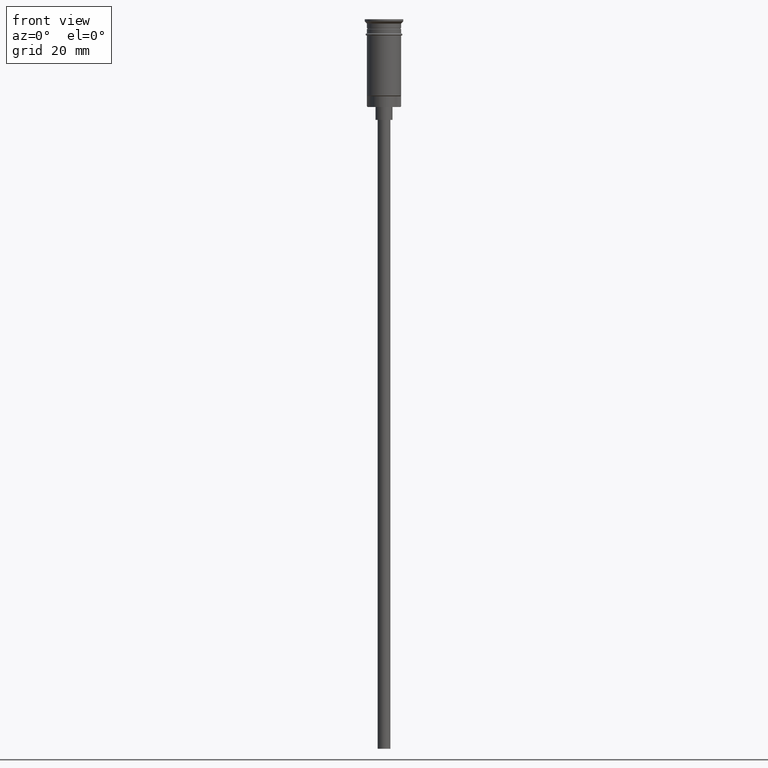
[diagram: clean part render]
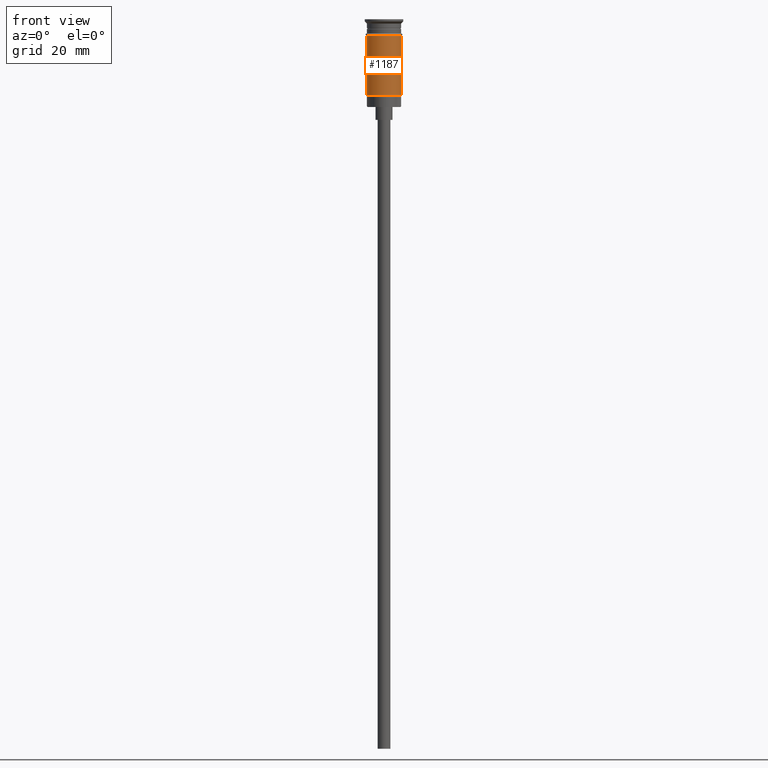
[diagram: same view with one face highlighted and labeled with its STEP entity id]
A machine part, front view. The second image highlights one B-rep face of the part: STEP entity #1187.
In plain terms, the highlighted cylindrical surface (edge-blend (fillet) strip) has radius 4 mm, axis along (-0, -0, 1).
Its self-contained STEP definition (entity closure, byte-faithful):
#13 = LINE ( 'NONE', #515, #332 ) ;
#26 = DIRECTION ( 'NONE',  ( -0.000000000000000000, -0.000000000000000000, 1.000000000000000000 ) ) ;
#37 = CARTESIAN_POINT ( 'NONE',  ( 0.000000000000000000, 0.000000000000000000, -17.79999999999998295 ) ) ;
#49 = VERTEX_POINT ( 'NONE', #416 ) ;
#52 = AXIS2_PLACEMENT_3D ( 'NONE', #37, #26, #509 ) ;
#79 = VECTOR ( 'NONE', #349, 1000.000000000000000 ) ;
#87 = DIRECTION ( 'NONE',  ( 1.000000000000000000, 0.000000000000000000, 0.000000000000000000 ) ) ;
#167 = EDGE_CURVE ( 'NONE', #759, #685, #256, .T. ) ;
#256 = CIRCLE ( 'NONE', #1009, 4.000000000000000000 ) ;
#269 = CARTESIAN_POINT ( 'NONE',  ( 0.000000000000000000, 0.000000000000000000, 0.000000000000000000 ) ) ;
#275 = DIRECTION ( 'NONE',  ( 1.000000000000000000, 0.000000000000000000, 0.000000000000000000 ) ) ;
#313 = ORIENTED_EDGE ( 'NONE', *, *, #1241, .T. ) ;
#332 = VECTOR ( 'NONE', #1024, 1000.000000000000000 ) ;
#349 = DIRECTION ( 'NONE',  ( -0.000000000000000000, -0.000000000000000000, 1.000000000000000000 ) ) ;
#400 = DIRECTION ( 'NONE',  ( -0.000000000000000000, -0.000000000000000000, 1.000000000000000000 ) ) ;
#416 = CARTESIAN_POINT ( 'NONE',  ( -3.999999999999997335, 0.000000000000000000, -17.79999999999998295 ) ) ;
#465 = DIRECTION ( 'NONE',  ( -0.000000000000000000, -0.000000000000000000, 1.000000000000000000 ) ) ;
#509 = DIRECTION ( 'NONE',  ( -1.000000000000000000, 0.000000000000000000, 0.000000000000000000 ) ) ;
#515 = CARTESIAN_POINT ( 'NONE',  ( 4.000000000000000000, 0.000000000000000000, 0.000000000000000000 ) ) ;
#524 = ORIENTED_EDGE ( 'NONE', *, *, #1483, .F. ) ;
#685 = VERTEX_POINT ( 'NONE', #1479 ) ;
#759 = VERTEX_POINT ( 'NONE', #1012 ) ;
#886 = CYLINDRICAL_SURFACE ( 'NONE', #1508, 4.000000000000000000 ) ;
#1009 = AXIS2_PLACEMENT_3D ( 'NONE', #1085, #465, #87 ) ;
#1012 = CARTESIAN_POINT ( 'NONE',  ( -4.000000000000000000, 4.898587196589412829E-16, -3.799999999999998490 ) ) ;
#1024 = DIRECTION ( 'NONE',  ( -0.000000000000000000, -0.000000000000000000, 1.000000000000000000 ) ) ;
#1085 = CARTESIAN_POINT ( 'NONE',  ( 0.000000000000000000, 0.000000000000000000, -3.799999999999998490 ) ) ;
#1086 = LINE ( 'NONE', #1205, #79 ) ;
#1145 = VERTEX_POINT ( 'NONE', #1461 ) ;
#1148 = EDGE_LOOP ( 'NONE', ( #524, #313, #1594, #1411 ) ) ;
#1187 = ADVANCED_FACE ( 'NONE', ( #1273 ), #886, .T. ) ;
#1205 = CARTESIAN_POINT ( 'NONE',  ( -4.000000000000000000, 4.898587196589412829E-16, 0.000000000000000000 ) ) ;
#1241 = EDGE_CURVE ( 'NONE', #49, #1145, #1583, .T. ) ;
#1258 = EDGE_CURVE ( 'NONE', #1145, #685, #13, .T. ) ;
#1273 = FACE_OUTER_BOUND ( 'NONE', #1148, .T. ) ;
#1411 = ORIENTED_EDGE ( 'NONE', *, *, #167, .F. ) ;
#1461 = CARTESIAN_POINT ( 'NONE',  ( 4.000000000000000000, 4.898587196589412829E-16, -17.79999999999998295 ) ) ;
#1479 = CARTESIAN_POINT ( 'NONE',  ( 4.000000000000000000, 0.000000000000000000, -3.799999999999998490 ) ) ;
#1483 = EDGE_CURVE ( 'NONE', #49, #759, #1086, .T. ) ;
#1508 = AXIS2_PLACEMENT_3D ( 'NONE', #269, #400, #275 ) ;
#1583 = CIRCLE ( 'NONE', #52, 4.000000000000000000 ) ;
#1594 = ORIENTED_EDGE ( 'NONE', *, *, #1258, .T. ) ;